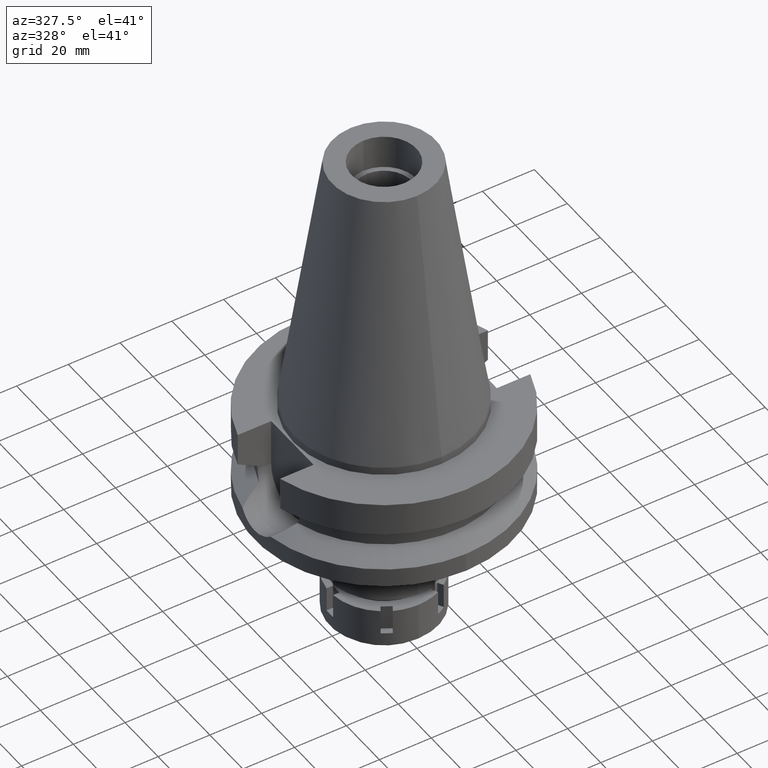
[diagram: clean part render]
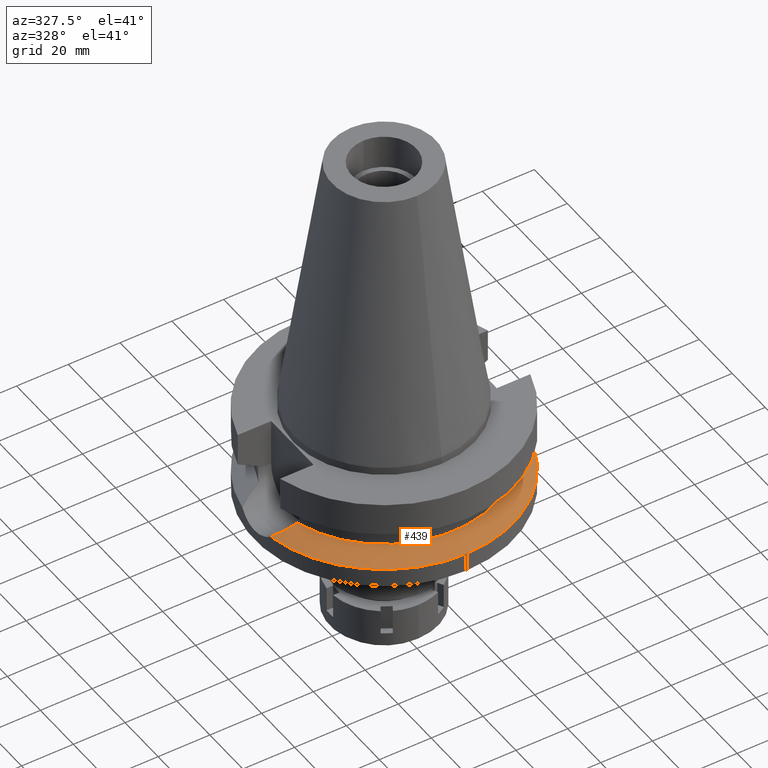
[diagram: same view with one face highlighted and labeled with its STEP entity id]
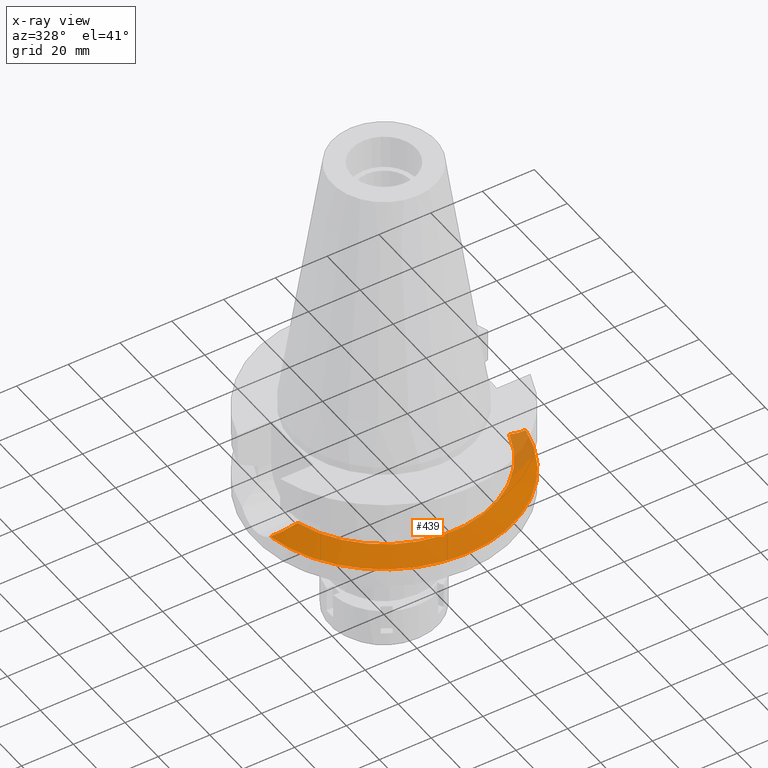
[diagram: x-ray of the same camera — body ghosted, the highlighted face saturated]
A machine part, auxiliary view. The second image highlights one B-rep face of the part: STEP entity #439.
The next image is the same camera in x-ray: the body ghosted, the highlighted face saturated — about 8% of this face is hidden behind the body in this view.
In plain terms, the highlighted conical surface has half-angle 60 deg.
Its self-contained STEP definition (entity closure, byte-faithful):
#138 = EDGE_CURVE ( 'NONE', #672, #2179, #2817, .T. ) ;
#185 = CARTESIAN_POINT ( 'NONE',  ( -48.68900674969381015, -8.885160854809479147, -30.44359960151269107 ) ) ;
#198 = DIRECTION ( 'NONE',  ( 0.9852500129747439050, -0.1711210446826074982, 0.0000000000000000000 ) ) ;
#206 = CARTESIAN_POINT ( 'NONE',  ( -48.06785169333712560, -9.207397577695580537, -30.12556767276826619 ) ) ;
#220 = CARTESIAN_POINT ( 'NONE',  ( -43.96066193586309367, -10.89329395196959638, -28.01500661760732314 ) ) ;
#276 = CARTESIAN_POINT ( 'NONE',  ( 44.92237102492047285, -10.53634727741173727, -28.50940078239406716 ) ) ;
#289 = VERTEX_POINT ( 'NONE', #2825 ) ;
#386 = EDGE_LOOP ( 'NONE', ( #927, #1903, #2213, #2779, #591 ) ) ;
#426 = CIRCLE ( 'NONE', #2460, 42.50000000000000000 ) ;
#438 = CARTESIAN_POINT ( 'NONE',  ( -45.25967322166555107, -10.41012639345777124, -28.68337967618681361 ) ) ;
#439 = ADVANCED_FACE ( 'NONE', ( #1437 ), #2821, .T. ) ;
#550 = CARTESIAN_POINT ( 'NONE',  ( 41.75382060710160204, -11.51560984937382415, -26.87504407561282704 ) ) ;
#580 = EDGE_CURVE ( 'NONE', #3141, #2667, #426, .T. ) ;
#591 = ORIENTED_EDGE ( 'NONE', *, *, #1308, .F. ) ;
#614 = CARTESIAN_POINT ( 'NONE',  ( 44.18075947033250372, -10.79294883915779479, -28.12765355842826409 ) ) ;
#672 = VERTEX_POINT ( 'NONE', #3404 ) ;
#675 = DIRECTION ( 'NONE',  ( 0.0000000000000000000, -1.000000000000000000, 0.0000000000000000000 ) ) ;
#696 = EDGE_CURVE ( 'NONE', #2179, #289, #1197, .T. ) ;
#706 = B_SPLINE_CURVE_WITH_KNOTS ( 'NONE', 3,
 ( #2671, #185, #206, #3546, #2149, #3276, #1809, #1540, #2641, #1262, #2373, #3226, #438, #220, #3296, #3337 ),
 .UNSPECIFIED., .F., .F.,
 ( 4, 2, 2, 1, 1, 1, 1, 2, 2, 4 ),
 ( 0.0000000000000000000, 0.2499999999999859002, 0.3749999999999779621, 0.4374999999999751865, 0.4687499999999745759, 0.4843749999999735767, 0.4921874999999731326, 0.4960937499999726330, 0.4999999999999721334, 1.000000000000000000 ),
 .UNSPECIFIED. ) ;
#871 = DIRECTION ( 'NONE',  ( 0.0000000000000000000, -1.000000000000000000, 0.0000000000000000000 ) ) ;
#927 = ORIENTED_EDGE ( 'NONE', *, *, #696, .F. ) ;
#928 = CARTESIAN_POINT ( 'NONE',  ( 0.0000000000000000000, 0.0000000000000000000, -26.40718074535000426 ) ) ;
#956 = CARTESIAN_POINT ( 'NONE',  ( 0.0000000000000000000, -50.00000000000000000, -30.73730776426999967 ) ) ;
#1081 = CARTESIAN_POINT ( 'NONE',  ( 48.20518290112119786, -9.162810886864564353, -30.19581490162808990 ) ) ;
#1130 = DIRECTION ( 'NONE',  ( 0.0000000000000000000, 0.0000000000000000000, -1.000000000000000000 ) ) ;
#1197 = CIRCLE ( 'NONE', #2581, 50.00000000000000000 ) ;
#1262 = CARTESIAN_POINT ( 'NONE',  ( -45.33301811392210112, -10.38273123908904161, -28.72111571633051952 ) ) ;
#1283 = CARTESIAN_POINT ( 'NONE',  ( 0.0000000000000000000, 0.0000000000000000000, -30.73730776426999967 ) ) ;
#1308 = EDGE_CURVE ( 'NONE', #289, #3141, #706, .T. ) ;
#1437 = FACE_OUTER_BOUND ( 'NONE', #386, .T. ) ;
#1474 = DIRECTION ( 'NONE',  ( 0.0000000000000000000, 0.0000000000000000000, 1.000000000000000000 ) ) ;
#1540 = CARTESIAN_POINT ( 'NONE',  ( -45.58130750332252745, -10.28866947327339254, -28.84884073400218085 ) ) ;
#1554 = DIRECTION ( 'NONE',  ( 0.0000000000000000000, 0.0000000000000000000, -1.000000000000000000 ) ) ;
#1556 = DIRECTION ( 'NONE',  ( 0.0000000000000000000, 0.0000000000000000000, -1.000000000000000000 ) ) ;
#1809 = CARTESIAN_POINT ( 'NONE',  ( -45.90779870082736380, -10.16179378516716092, -29.01674340456438728 ) ) ;
#1903 = ORIENTED_EDGE ( 'NONE', *, *, #138, .F. ) ;
#1917 = CARTESIAN_POINT ( 'NONE',  ( 40.85052569294000335, -11.72538061688000077, -26.40718074535000426 ) ) ;
#1955 = CARTESIAN_POINT ( 'NONE',  ( 45.28140135833221791, -10.40472307942125241, -28.69404942361046551 ) ) ;
#1963 = CARTESIAN_POINT ( 'NONE',  ( -40.85052569294000335, -11.72538061688000077, -26.40718074535000426 ) ) ;
#2094 = CARTESIAN_POINT ( 'NONE',  ( 40.85052569294000335, -11.72538061688000077, -26.40718074535000426 ) ) ;
#2149 = CARTESIAN_POINT ( 'NONE',  ( -46.71830397667513068, -9.826858898493618710, -29.43320861178913006 ) ) ;
#2179 = VERTEX_POINT ( 'NONE', #956 ) ;
#2209 = CARTESIAN_POINT ( 'NONE',  ( 42.60322106807194587, -11.28508854079970014, -27.31419836094648801 ) ) ;
#2213 = ORIENTED_EDGE ( 'NONE', *, *, #3444, .F. ) ;
#2273 = CARTESIAN_POINT ( 'NONE',  ( 0.0000000000000000000, 0.0000000000000000000, -28.57224425480999841 ) ) ;
#2373 = CARTESIAN_POINT ( 'NONE',  ( -45.29730384463119464, -10.39608876404486537, -28.70274094552990007 ) ) ;
#2457 = AXIS2_PLACEMENT_3D ( 'NONE', #2986, #1556, #198 ) ;
#2460 = AXIS2_PLACEMENT_3D ( 'NONE', #928, #1474, #675 ) ;
#2581 = AXIS2_PLACEMENT_3D ( 'NONE', #1283, #1554, #2645 ) ;
#2632 = AXIS2_PLACEMENT_3D ( 'NONE', #2273, #1130, #871 ) ;
#2641 = CARTESIAN_POINT ( 'NONE',  ( -45.41610705241480161, -10.35148336784234324, -28.76386186856373683 ) ) ;
#2645 = DIRECTION ( 'NONE',  ( 0.0000000000000000000, -1.000000000000000000, 0.0000000000000000000 ) ) ;
#2667 = VERTEX_POINT ( 'NONE', #2094 ) ;
#2671 = CARTESIAN_POINT ( 'NONE',  ( -49.26250064874000145, -8.556052234130000045, -30.73730776426999967 ) ) ;
#2779 = ORIENTED_EDGE ( 'NONE', *, *, #580, .F. ) ;
#2817 = CIRCLE ( 'NONE', #2457, 50.00000000000000000 ) ;
#2820 = CARTESIAN_POINT ( 'NONE',  ( 46.99220326474619469, -9.743566202998698245, -29.57380690026057479 ) ) ;
#2821 = CONICAL_SURFACE ( 'NONE', #2632, 46.25000000000000000, 1.047197551196400456 ) ;
#2825 = CARTESIAN_POINT ( 'NONE',  ( -49.26250064874000145, -8.556052234130000045, -30.73730776426999967 ) ) ;
#2986 = CARTESIAN_POINT ( 'NONE',  ( 0.0000000000000000000, 0.0000000000000000000, -30.73730776426999967 ) ) ;
#3074 = CARTESIAN_POINT ( 'NONE',  ( 49.26250064874000145, -8.556052234130000045, -30.73730776426999967 ) ) ;
#3141 = VERTEX_POINT ( 'NONE', #1963 ) ;
#3226 = CARTESIAN_POINT ( 'NONE',  ( -45.27347105972112473, -10.40498609484935599, -28.69047888042764072 ) ) ;
#3276 = CARTESIAN_POINT ( 'NONE',  ( -46.18094594844185252, -10.05098836248417271, -29.15713326456714682 ) ) ;
#3296 = CARTESIAN_POINT ( 'NONE',  ( -42.49430271126414027, -11.34364884651445671, -27.25857819921503022 ) ) ;
#3337 = CARTESIAN_POINT ( 'NONE',  ( -40.85052569294000335, -11.72538061688000077, -26.40718074535000426 ) ) ;
#3404 = CARTESIAN_POINT ( 'NONE',  ( 49.26250064874000145, -8.556052234130000045, -30.73730776426999967 ) ) ;
#3444 = EDGE_CURVE ( 'NONE', #2667, #672, #3463, .T. ) ;
#3463 = B_SPLINE_CURVE_WITH_KNOTS ( 'NONE', 3,
 ( #1917, #550, #2209, #3603, #614, #276, #1955, #2820, #1081, #3074 ),
 .UNSPECIFIED., .F., .F.,
 ( 4, 2, 2, 2, 4 ),
 ( 0.0000000000000000000, 0.2500000000000002220, 0.3750000000000002776, 0.5000000000000003331, 1.000000000000000000 ),
 .UNSPECIFIED. ) ;
#3546 = CARTESIAN_POINT ( 'NONE',  ( -47.06462737283636244, -9.674082718537491132, -29.61098368131290925 ) ) ;
#3603 = CARTESIAN_POINT ( 'NONE',  ( 43.79648007974071078, -10.91858233567823966, -27.92968111202224080 ) ) ;